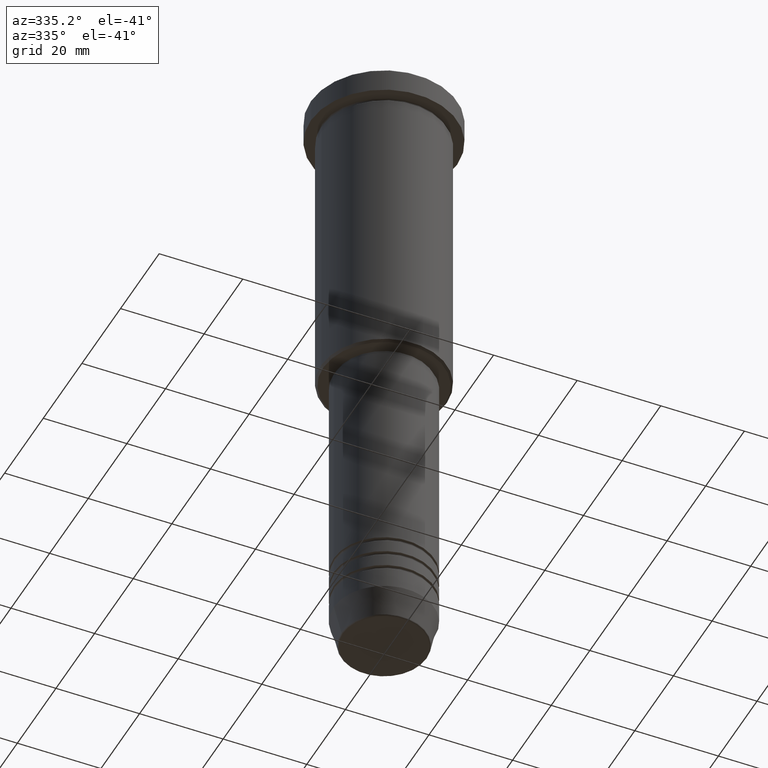
[diagram: clean part render]
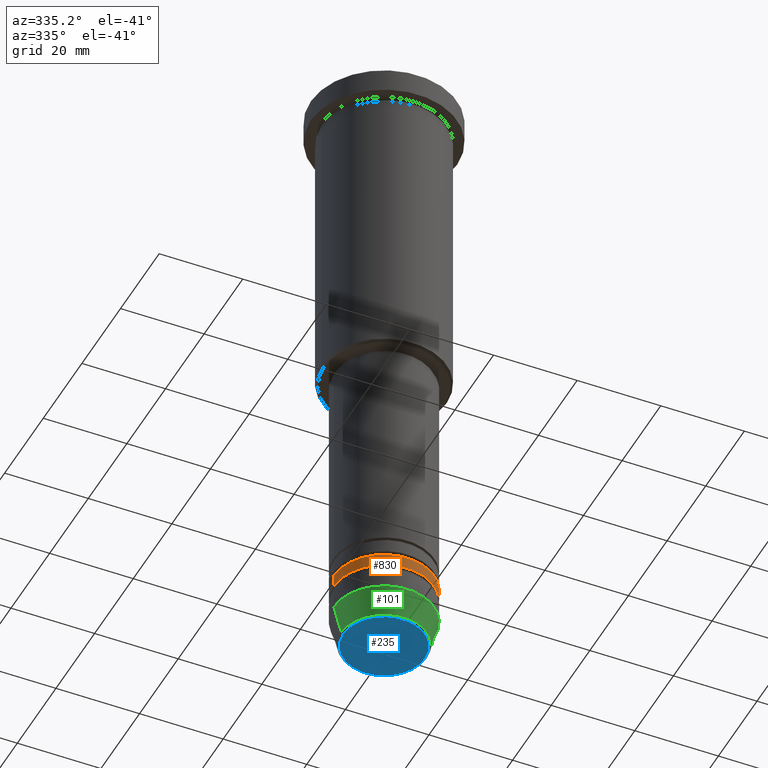
[diagram: same view with three faces highlighted in distinct colors, each labeled with its STEP entity id]
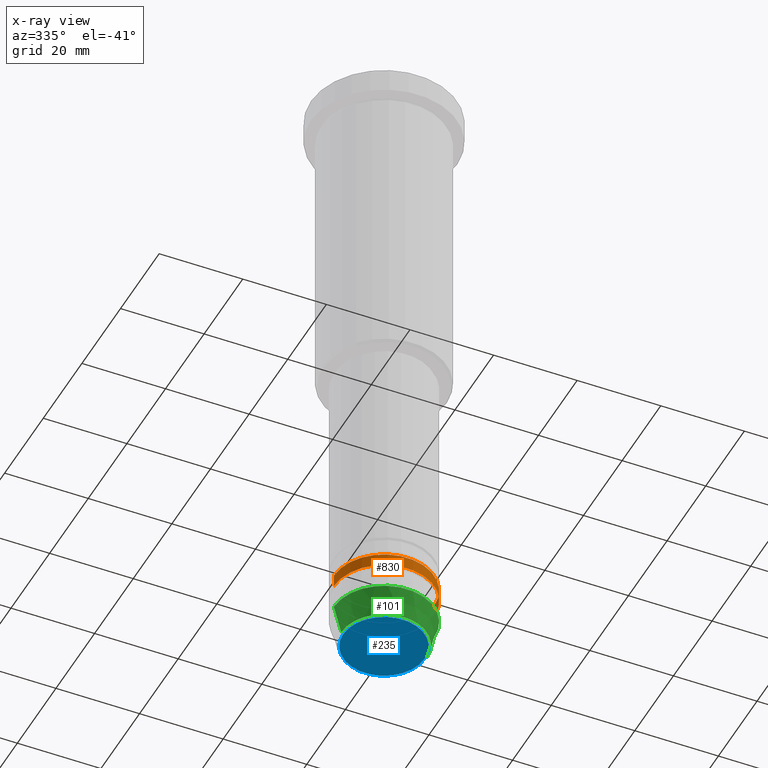
[diagram: x-ray of the same camera — body ghosted, the three highlighted faces saturated]
A machine part, auxiliary view with three faces highlighted in distinct colors.
The next image is the same camera in x-ray (body ghosted, the three faces saturated) — at least one of them is partly hidden behind the body in this view.
Their STEP definitions:

[orange] entity #830 — the highlighted cylindrical surface (partial cylindrical patch) has radius 12 mm, axis along (-0, -0, 1).
#4 = DIRECTION ( 'NONE',  ( 1.000000000000000000, 0.000000000000000000, 0.000000000000000000 ) ) ;
#26 = DIRECTION ( 'NONE',  ( -0.000000000000000000, -0.000000000000000000, 1.000000000000000000 ) ) ;
#95 = CIRCLE ( 'NONE', #560, 12.00000000000000000 ) ;
#100 = LINE ( 'NONE', #199, #783 ) ;
#148 = ORIENTED_EDGE ( 'NONE', *, *, #765, .F. ) ;
#199 = CARTESIAN_POINT ( 'NONE',  ( 12.00000000000000000, 0.000000000000000000, 0.000000000000000000 ) ) ;
#204 = DIRECTION ( 'NONE',  ( 1.000000000000000000, 0.000000000000000000, 0.000000000000000000 ) ) ;
#205 = VERTEX_POINT ( 'NONE', #606 ) ;
#223 = CYLINDRICAL_SURFACE ( 'NONE', #737, 12.00000000000000000 ) ;
#354 = CARTESIAN_POINT ( 'NONE',  ( 12.00000000000000000, 0.000000000000000000, -137.9999999999998863 ) ) ;
#358 = CARTESIAN_POINT ( 'NONE',  ( -12.00000000000000000, 1.469576158976823947E-15, 0.000000000000000000 ) ) ;
#377 = DIRECTION ( 'NONE',  ( -0.000000000000000000, -0.000000000000000000, 1.000000000000000000 ) ) ;
#477 = CARTESIAN_POINT ( 'NONE',  ( -12.00000000000000000, 1.469576158976823947E-15, -134.9999999999998863 ) ) ;
#542 = EDGE_CURVE ( 'NONE', #964, #969, #100, .T. ) ;
#552 = CARTESIAN_POINT ( 'NONE',  ( 12.00000000000000000, 0.000000000000000000, -134.9999999999998863 ) ) ;
#560 = AXIS2_PLACEMENT_3D ( 'NONE', #1144, #623, #989 ) ;
#572 = EDGE_LOOP ( 'NONE', ( #148, #668, #632, #1063 ) ) ;
#581 = CARTESIAN_POINT ( 'NONE',  ( 0.000000000000000000, 0.000000000000000000, 0.000000000000000000 ) ) ;
#606 = CARTESIAN_POINT ( 'NONE',  ( -12.00000000000000000, 1.469576158976823947E-15, -137.9999999999998863 ) ) ;
#623 = DIRECTION ( 'NONE',  ( -0.000000000000000000, -0.000000000000000000, 1.000000000000000000 ) ) ;
#632 = ORIENTED_EDGE ( 'NONE', *, *, #542, .T. ) ;
#648 = CARTESIAN_POINT ( 'NONE',  ( 0.000000000000000000, 0.000000000000000000, -137.9999999999998863 ) ) ;
#668 = ORIENTED_EDGE ( 'NONE', *, *, #1142, .T. ) ;
#670 = FACE_OUTER_BOUND ( 'NONE', #572, .T. ) ;
#713 = DIRECTION ( 'NONE',  ( -0.000000000000000000, -0.000000000000000000, 1.000000000000000000 ) ) ;
#737 = AXIS2_PLACEMENT_3D ( 'NONE', #581, #377, #4 ) ;
#765 = EDGE_CURVE ( 'NONE', #205, #846, #911, .T. ) ;
#783 = VECTOR ( 'NONE', #26, 1000.000000000000000 ) ;
#790 = AXIS2_PLACEMENT_3D ( 'NONE', #648, #1013, #204 ) ;
#830 = ADVANCED_FACE ( 'NONE', ( #670 ), #223, .T. ) ;
#846 = VERTEX_POINT ( 'NONE', #477 ) ;
#911 = LINE ( 'NONE', #358, #940 ) ;
#927 = EDGE_CURVE ( 'NONE', #846, #969, #95, .T. ) ;
#940 = VECTOR ( 'NONE', #713, 1000.000000000000000 ) ;
#964 = VERTEX_POINT ( 'NONE', #354 ) ;
#969 = VERTEX_POINT ( 'NONE', #552 ) ;
#989 = DIRECTION ( 'NONE',  ( 1.000000000000000000, 0.000000000000000000, 0.000000000000000000 ) ) ;
#1013 = DIRECTION ( 'NONE',  ( -0.000000000000000000, -0.000000000000000000, 1.000000000000000000 ) ) ;
#1063 = ORIENTED_EDGE ( 'NONE', *, *, #927, .F. ) ;
#1084 = CIRCLE ( 'NONE', #790, 12.00000000000000000 ) ;
#1142 = EDGE_CURVE ( 'NONE', #205, #964, #1084, .T. ) ;
#1144 = CARTESIAN_POINT ( 'NONE',  ( 0.000000000000000000, 0.000000000000000000, -134.9999999999998863 ) ) ;

[blue] entity #235 — the highlighted planar face has unit normal (0, -0, 1).
#21 = CIRCLE ( 'NONE', #694, 9.740692158992658278 ) ;
#28 = CARTESIAN_POINT ( 'NONE',  ( 0.000000000000000000, 0.000000000000000000, -151.0000000000000284 ) ) ;
#131 = CARTESIAN_POINT ( 'NONE',  ( 9.740692158992658278, 0.000000000000000000, -151.0000000000000284 ) ) ;
#167 = EDGE_CURVE ( 'NONE', #938, #352, #446, .T. ) ;
#177 = DIRECTION ( 'NONE',  ( 1.000000000000000000, 0.000000000000000000, 0.000000000000000000 ) ) ;
#235 = ADVANCED_FACE ( 'NONE', ( #700 ), #874, .F. ) ;
#275 = ORIENTED_EDGE ( 'NONE', *, *, #167, .T. ) ;
#292 = ORIENTED_EDGE ( 'NONE', *, *, #1183, .T. ) ;
#352 = VERTEX_POINT ( 'NONE', #131 ) ;
#394 = DIRECTION ( 'NONE',  ( 1.000000000000000000, 0.000000000000000000, 0.000000000000000000 ) ) ;
#412 = DIRECTION ( 'NONE',  ( 0.000000000000000000, 0.000000000000000000, -1.000000000000000000 ) ) ;
#446 = CIRCLE ( 'NONE', #801, 9.740692158992658278 ) ;
#505 = CARTESIAN_POINT ( 'NONE',  ( -9.740692158992658278, 1.222463696683474999E-15, -151.0000000000000284 ) ) ;
#540 = DIRECTION ( 'NONE',  ( 1.000000000000000000, 0.000000000000000000, 0.000000000000000000 ) ) ;
#620 = DIRECTION ( 'NONE',  ( 0.000000000000000000, -0.000000000000000000, 1.000000000000000000 ) ) ;
#694 = AXIS2_PLACEMENT_3D ( 'NONE', #772, #1120, #394 ) ;
#700 = FACE_OUTER_BOUND ( 'NONE', #792, .T. ) ;
#772 = CARTESIAN_POINT ( 'NONE',  ( 0.000000000000000000, 0.000000000000000000, -151.0000000000000284 ) ) ;
#792 = EDGE_LOOP ( 'NONE', ( #292, #275 ) ) ;
#801 = AXIS2_PLACEMENT_3D ( 'NONE', #28, #412, #540 ) ;
#870 = AXIS2_PLACEMENT_3D ( 'NONE', #894, #620, #177 ) ;
#874 = PLANE ( 'NONE',  #870 ) ;
#894 = CARTESIAN_POINT ( 'NONE',  ( 0.000000000000000000, 0.000000000000000000, -151.0000000000000284 ) ) ;
#938 = VERTEX_POINT ( 'NONE', #505 ) ;
#1120 = DIRECTION ( 'NONE',  ( 0.000000000000000000, 0.000000000000000000, -1.000000000000000000 ) ) ;
#1183 = EDGE_CURVE ( 'NONE', #352, #938, #21, .T. ) ;

[green] entity #101 — the highlighted conical surface has half-angle 15 deg.
#33 = DIRECTION ( 'NONE',  ( 1.000000000000000000, 0.000000000000000000, 0.000000000000000000 ) ) ;
#67 = CARTESIAN_POINT ( 'NONE',  ( 12.00000000000000000, 0.000000000000000000, -144.0000000000000284 ) ) ;
#75 = LINE ( 'NONE', #253, #936 ) ;
#88 = ORIENTED_EDGE ( 'NONE', *, *, #335, .F. ) ;
#94 = CARTESIAN_POINT ( 'NONE',  ( 12.00000000000000000, 0.000000000000000000, -144.0000000000000284 ) ) ;
#101 = ADVANCED_FACE ( 'NONE', ( #170 ), #663, .T. ) ;
#120 = EDGE_CURVE ( 'NONE', #1060, #1021, #1075, .T. ) ;
#170 = FACE_OUTER_BOUND ( 'NONE', #722, .T. ) ;
#181 = DIRECTION ( 'NONE',  ( 1.000000000000000000, 0.000000000000000000, 0.000000000000000000 ) ) ;
#211 = VERTEX_POINT ( 'NONE', #656 ) ;
#253 = CARTESIAN_POINT ( 'NONE',  ( -12.00000000000000000, 1.469576158976823947E-15, -144.0000000000000284 ) ) ;
#303 = CARTESIAN_POINT ( 'NONE',  ( 0.000000000000000000, 0.000000000000000000, -144.0000000000000284 ) ) ;
#335 = EDGE_CURVE ( 'NONE', #211, #806, #1054, .T. ) ;
#340 = DIRECTION ( 'NONE',  ( 1.000000000000000000, 0.000000000000000000, 0.000000000000000000 ) ) ;
#375 = ORIENTED_EDGE ( 'NONE', *, *, #399, .F. ) ;
#399 = EDGE_CURVE ( 'NONE', #1060, #211, #75, .T. ) ;
#469 = AXIS2_PLACEMENT_3D ( 'NONE', #525, #988, #181 ) ;
#525 = CARTESIAN_POINT ( 'NONE',  ( 0.000000000000000000, 0.000000000000000000, -150.6294095225512706 ) ) ;
#599 = DIRECTION ( 'NONE',  ( -0.000000000000000000, -0.000000000000000000, 1.000000000000000000 ) ) ;
#610 = VECTOR ( 'NONE', #1179, 1000.000000000000000 ) ;
#630 = DIRECTION ( 'NONE',  ( -0.000000000000000000, -0.000000000000000000, 1.000000000000000000 ) ) ;
#644 = AXIS2_PLACEMENT_3D ( 'NONE', #303, #599, #33 ) ;
#656 = CARTESIAN_POINT ( 'NONE',  ( -12.00000000000000000, 1.469576158976823947E-15, -144.0000000000000284 ) ) ;
#658 = DIRECTION ( 'NONE',  ( -0.2588190451025213501, 3.169619151431772337E-17, 0.9659258262890680902 ) ) ;
#663 = CONICAL_SURFACE ( 'NONE', #1022, 12.00000000000000000, 0.2617993877991500740 ) ;
#721 = ORIENTED_EDGE ( 'NONE', *, *, #120, .T. ) ;
#722 = EDGE_LOOP ( 'NONE', ( #375, #721, #824, #88 ) ) ;
#742 = CARTESIAN_POINT ( 'NONE',  ( -10.22365507213719127, 1.360806402472382744E-15, -150.6294095225512706 ) ) ;
#806 = VERTEX_POINT ( 'NONE', #67 ) ;
#824 = ORIENTED_EDGE ( 'NONE', *, *, #1034, .T. ) ;
#827 = CARTESIAN_POINT ( 'NONE',  ( 0.000000000000000000, 0.000000000000000000, -144.0000000000000284 ) ) ;
#936 = VECTOR ( 'NONE', #658, 1000.000000000000000 ) ;
#939 = LINE ( 'NONE', #94, #610 ) ;
#988 = DIRECTION ( 'NONE',  ( -0.000000000000000000, -0.000000000000000000, 1.000000000000000000 ) ) ;
#1021 = VERTEX_POINT ( 'NONE', #1128 ) ;
#1022 = AXIS2_PLACEMENT_3D ( 'NONE', #827, #630, #340 ) ;
#1034 = EDGE_CURVE ( 'NONE', #1021, #806, #939, .T. ) ;
#1054 = CIRCLE ( 'NONE', #644, 12.00000000000000000 ) ;
#1060 = VERTEX_POINT ( 'NONE', #742 ) ;
#1075 = CIRCLE ( 'NONE', #469, 10.22365507213719127 ) ;
#1128 = CARTESIAN_POINT ( 'NONE',  ( 10.22365507213719127, 0.000000000000000000, -150.6294095225512706 ) ) ;
#1179 = DIRECTION ( 'NONE',  ( 0.2588190451025213501, 0.000000000000000000, 0.9659258262890680902 ) ) ;